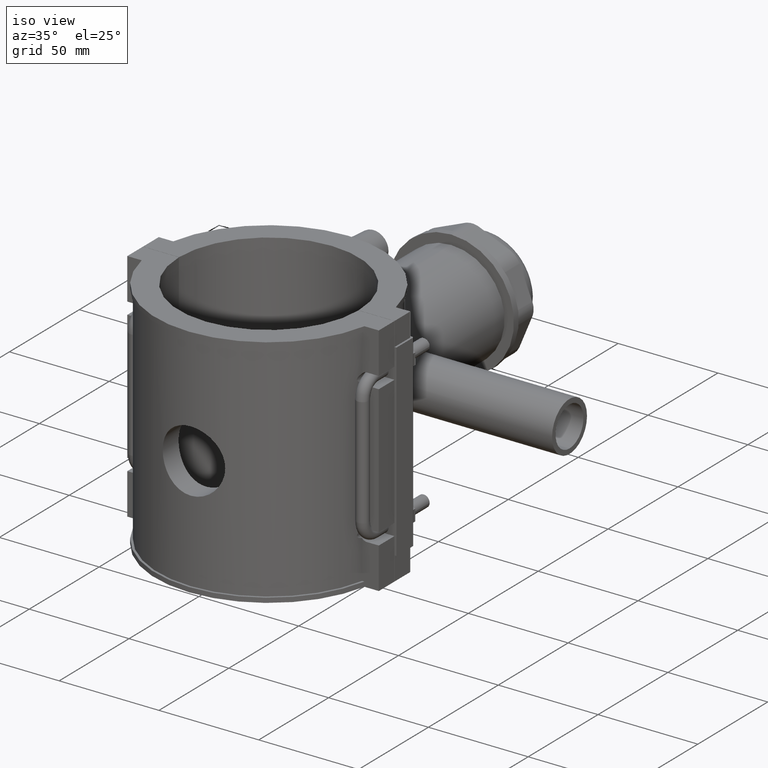
[diagram: clean part render]
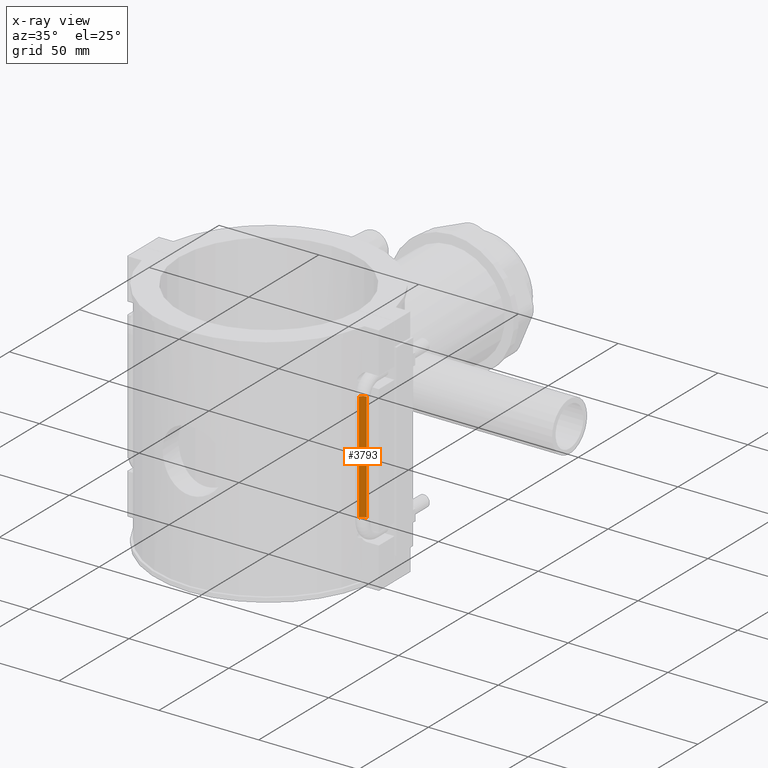
[diagram: x-ray — body ghosted, one internal face saturated and labeled with its STEP entity id]
A machine part, iso view, then the same camera in x-ray: the body is ghosted and one INTERNAL B-rep face — a face not visible from any outside direction — is saturated and labeled: STEP entity #3793.
In plain terms, the highlighted cylindrical surface (edge-blend (fillet) strip) has radius 3 mm, axis along (0, 0, -1).
Its self-contained STEP definition (entity closure, byte-faithful):
#302=LINE('',#7969,#601);
#303=LINE('',#7972,#602);
#601=VECTOR('',#4973,54.7999999999999);
#602=VECTOR('',#4976,54.7999999999999);
#891=CIRCLE('',#4106,3.);
#892=CIRCLE('',#4109,3.);
#1148=FACE_OUTER_BOUND('',#1418,.T.);
#1418=EDGE_LOOP('',(#3356,#3357,#3358,#3359));
#1879=VERTEX_POINT('',#7821);
#1887=VERTEX_POINT('',#7887);
#1894=VERTEX_POINT('',#7952);
#1895=VERTEX_POINT('',#7971);
#2399=EDGE_CURVE('',#1894,#1887,#891,.T.);
#2400=EDGE_CURVE('',#1887,#1879,#302,.T.);
#2401=EDGE_CURVE('',#1894,#1895,#303,.T.);
#2402=EDGE_CURVE('',#1895,#1879,#892,.T.);
#3356=ORIENTED_EDGE('',*,*,#2401,.F.);
#3357=ORIENTED_EDGE('',*,*,#2399,.T.);
#3358=ORIENTED_EDGE('',*,*,#2400,.T.);
#3359=ORIENTED_EDGE('',*,*,#2402,.F.);
#3593=CYLINDRICAL_SURFACE('',#4108,3.);
#3793=ADVANCED_FACE('',(#1148),#3593,.T.);
#4106=AXIS2_PLACEMENT_3D('',#7967,#4969,#4970);
#4108=AXIS2_PLACEMENT_3D('',#7970,#4974,#4975);
#4109=AXIS2_PLACEMENT_3D('',#7973,#4977,#4978);
#4969=DIRECTION('center_axis',(0.,-6.12323399573677E-17,-1.));
#4970=DIRECTION('ref_axis',(-1.,0.,0.));
#4973=DIRECTION('',(0.,0.,-1.));
#4974=DIRECTION('center_axis',(0.,0.,-1.));
#4975=DIRECTION('ref_axis',(-1.,0.,0.));
#4976=DIRECTION('',(0.,0.,-1.));
#4977=DIRECTION('center_axis',(0.,-6.12323399573677E-17,-1.));
#4978=DIRECTION('ref_axis',(-1.,0.,0.));
#7821=CARTESIAN_POINT('',(57.,-11.25,-27.4));
#7887=CARTESIAN_POINT('',(57.,-11.25,27.3999999999999));
#7952=CARTESIAN_POINT('',(54.2550567814544,-13.0395097162878,27.3999999999999));
#7967=CARTESIAN_POINT('Origin',(57.,-14.2499999999994,27.3999999999999));
#7969=CARTESIAN_POINT('',(57.,-11.25,27.3999999999999));
#7970=CARTESIAN_POINT('Origin',(57.,-14.2499999999994,27.3999999999999));
#7971=CARTESIAN_POINT('',(54.2550567814544,-13.0395097162878,-27.4));
#7972=CARTESIAN_POINT('',(54.2550567814544,-13.0395097162878,27.3999999999999));
#7973=CARTESIAN_POINT('Origin',(57.,-14.2499999999994,-27.4));